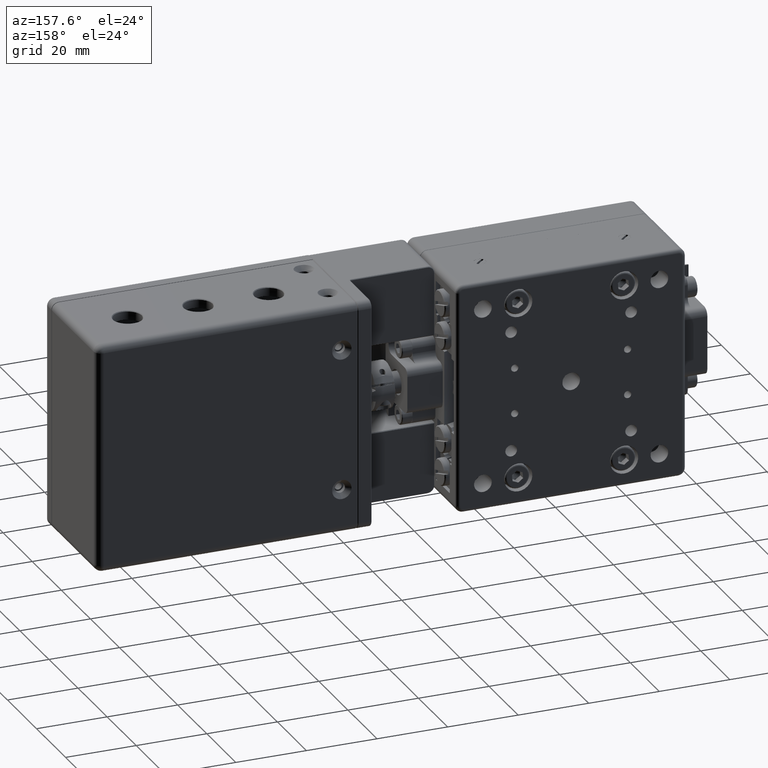
[diagram: clean part render]
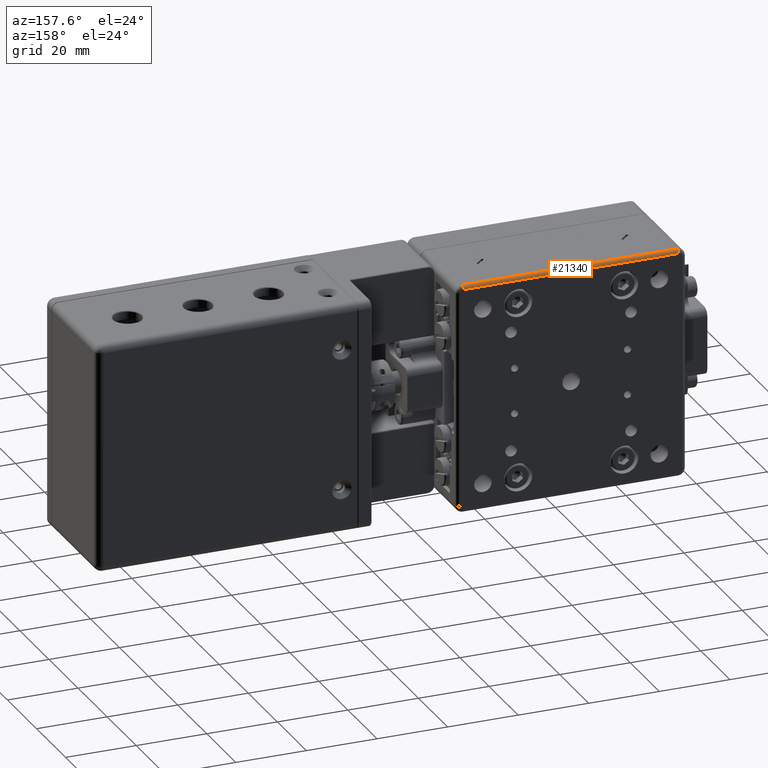
[diagram: same view with one face highlighted and labeled with its STEP entity id]
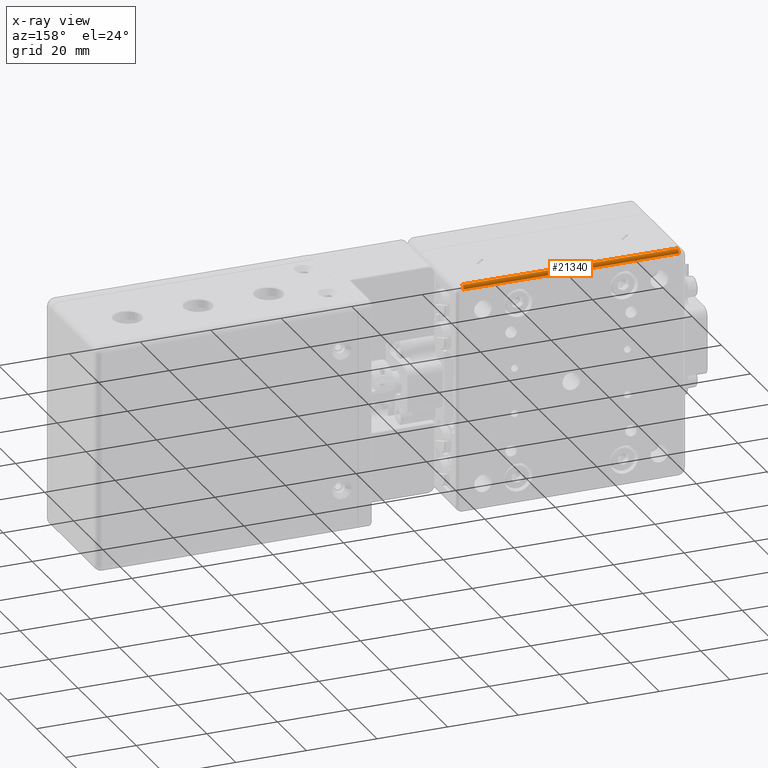
[diagram: x-ray of the same camera — body ghosted, the highlighted face saturated]
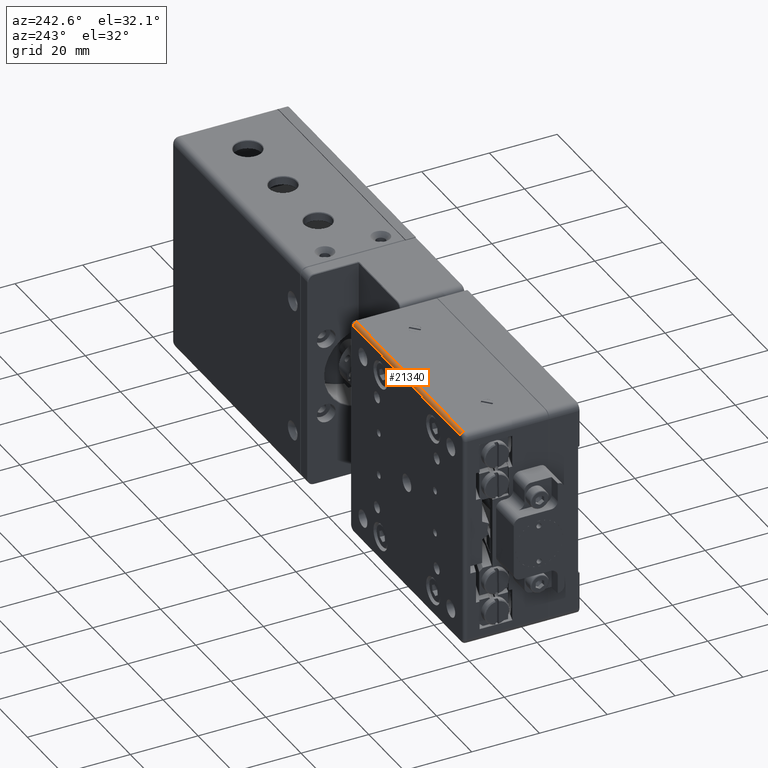
[diagram: same view with one face highlighted and labeled with its STEP entity id]
A machine part, auxiliary view. The second image highlights one B-rep face of the part: STEP entity #21340.
The next image is the same camera in x-ray: the body ghosted, the highlighted face saturated — about 0% of this face is hidden behind the body in this view.
A second angle (auxiliary view) of the same face is appended — the face is thin or edge-on in the first view.
In plain terms, the highlighted cylindrical surface (edge-blend (fillet) strip) has radius 1 mm, axis along (-1, 0, 0).
Its self-contained STEP definition (entity closure, byte-faithful):
#3255 = DIRECTION ( 'NONE',  ( 0.000000000000000000, 0.000000000000000000, -1.000000000000000000 ) ) ;
#3590 = CARTESIAN_POINT ( 'NONE',  ( -73.98615177131389942, 20.00221016956369979, 31.50000000000000000 ) ) ;
#3608 = DIRECTION ( 'NONE',  ( -1.000000000000000000, 0.000000000000000000, 0.000000000000000000 ) ) ;
#8288 = VECTOR ( 'NONE', #24573, 1000.000000000000000 ) ;
#10565 = LINE ( 'NONE', #40508, #17120 ) ;
#11593 = CARTESIAN_POINT ( 'NONE',  ( -136.9861517713140131, 20.00221016956369979, 31.50000000000000000 ) ) ;
#11823 = VERTEX_POINT ( 'NONE', #41203 ) ;
#13404 = ORIENTED_EDGE ( 'NONE', *, *, #50700, .F. ) ;
#16938 = DIRECTION ( 'NONE',  ( 0.000000000000000000, 0.000000000000000000, -1.000000000000000000 ) ) ;
#17120 = VECTOR ( 'NONE', #45848, 1000.000000000000000 ) ;
#17319 = AXIS2_PLACEMENT_3D ( 'NONE', #34126, #3608, #42032 ) ;
#17781 = DIRECTION ( 'NONE',  ( 1.000000000000000000, 0.000000000000000000, 0.000000000000000000 ) ) ;
#21340 = ADVANCED_FACE ( 'NONE', ( #29041 ), #42310, .T. ) ;
#21833 = ORIENTED_EDGE ( 'NONE', *, *, #35339, .T. ) ;
#24523 = EDGE_CURVE ( 'NONE', #11823, #24834, #10565, .T. ) ;
#24573 = DIRECTION ( 'NONE',  ( 1.000000000000000000, 0.000000000000000000, 0.000000000000000000 ) ) ;
#24705 = DIRECTION ( 'NONE',  ( 1.000000000000000000, 0.000000000000000000, 0.000000000000000000 ) ) ;
#24834 = VERTEX_POINT ( 'NONE', #26624 ) ;
#25268 = CARTESIAN_POINT ( 'NONE',  ( -134.9861517713140131, 19.00221016956370335, 31.50000000000000000 ) ) ;
#26578 = VERTEX_POINT ( 'NONE', #37826 ) ;
#26624 = CARTESIAN_POINT ( 'NONE',  ( -134.9861517713140131, 19.00221016956370335, 32.50000000000000000 ) ) ;
#29041 = FACE_OUTER_BOUND ( 'NONE', #49497, .T. ) ;
#30243 = EDGE_CURVE ( 'NONE', #26578, #33625, #50295, .T. ) ;
#33325 = AXIS2_PLACEMENT_3D ( 'NONE', #34179, #17781, #16938 ) ;
#33625 = VERTEX_POINT ( 'NONE', #3590 ) ;
#33642 = CIRCLE ( 'NONE', #40853, 1.000000000000000888 ) ;
#34126 = CARTESIAN_POINT ( 'NONE',  ( -104.4861517713139989, 19.00221016956370335, 31.50000000000000000 ) ) ;
#34179 = CARTESIAN_POINT ( 'NONE',  ( -73.98615177131389942, 19.00221016956370335, 31.50000000000000000 ) ) ;
#35339 = EDGE_CURVE ( 'NONE', #26578, #24834, #33642, .T. ) ;
#37826 = CARTESIAN_POINT ( 'NONE',  ( -134.9861517713140131, 20.00221016956369979, 31.50000000000000000 ) ) ;
#40508 = CARTESIAN_POINT ( 'NONE',  ( -104.4861517713139989, 19.00221016956370335, 32.50000000000000000 ) ) ;
#40853 = AXIS2_PLACEMENT_3D ( 'NONE', #25268, #24705, #3255 ) ;
#41203 = CARTESIAN_POINT ( 'NONE',  ( -73.98615177131389942, 19.00221016956370335, 32.50000000000000000 ) ) ;
#42032 = DIRECTION ( 'NONE',  ( 0.000000000000000000, 0.000000000000000000, 1.000000000000000000 ) ) ;
#42310 = CYLINDRICAL_SURFACE ( 'NONE', #17319, 1.000000000000000888 ) ;
#43333 = ORIENTED_EDGE ( 'NONE', *, *, #24523, .F. ) ;
#44167 = CIRCLE ( 'NONE', #33325, 1.000000000000000888 ) ;
#45848 = DIRECTION ( 'NONE',  ( -1.000000000000000000, 0.000000000000000000, 0.000000000000000000 ) ) ;
#49497 = EDGE_LOOP ( 'NONE', ( #21833, #43333, #13404, #51380 ) ) ;
#50295 = LINE ( 'NONE', #11593, #8288 ) ;
#50700 = EDGE_CURVE ( 'NONE', #33625, #11823, #44167, .T. ) ;
#51380 = ORIENTED_EDGE ( 'NONE', *, *, #30243, .F. ) ;